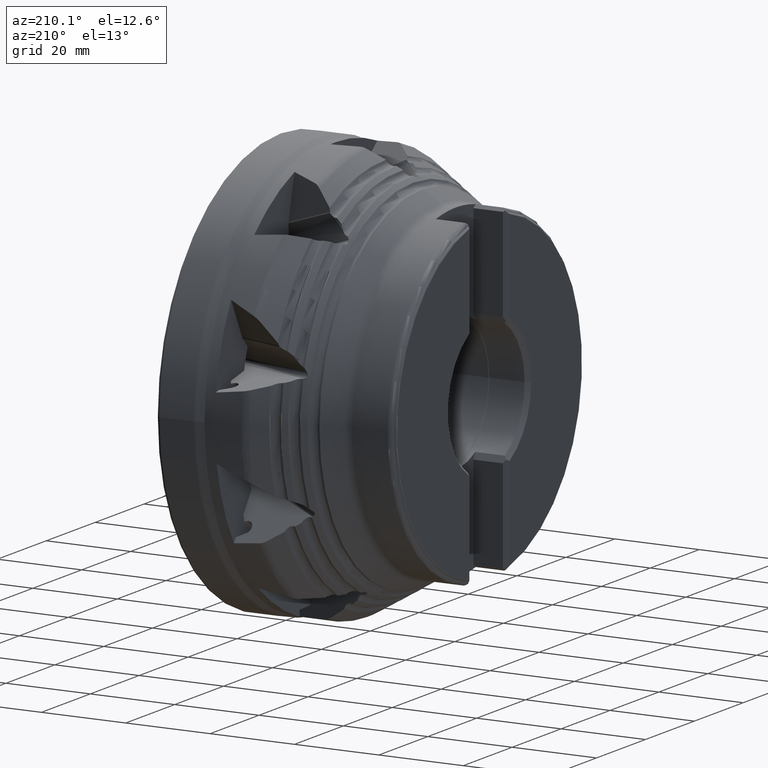
[diagram: clean part render]
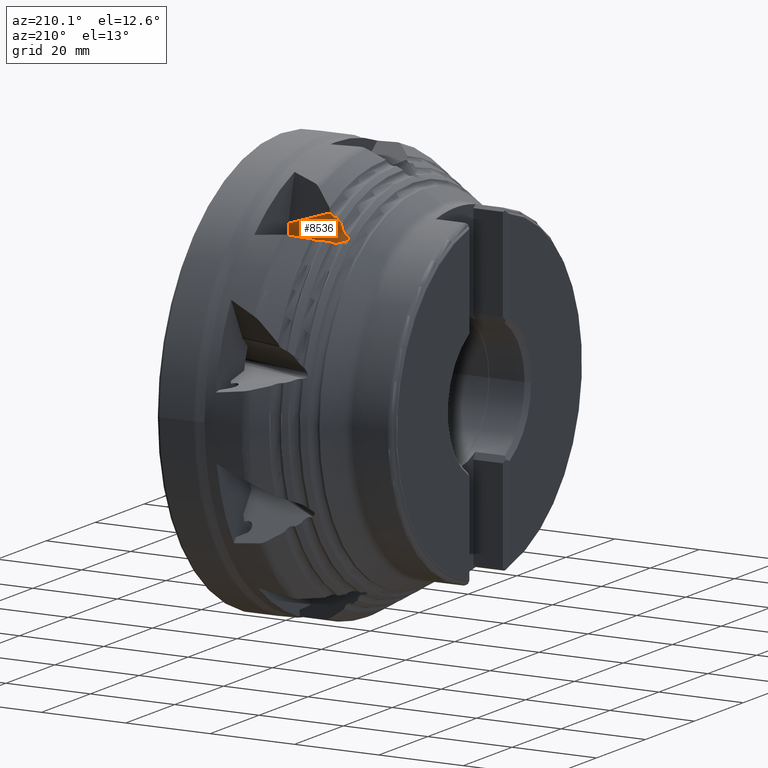
[diagram: same view with one face highlighted and labeled with its STEP entity id]
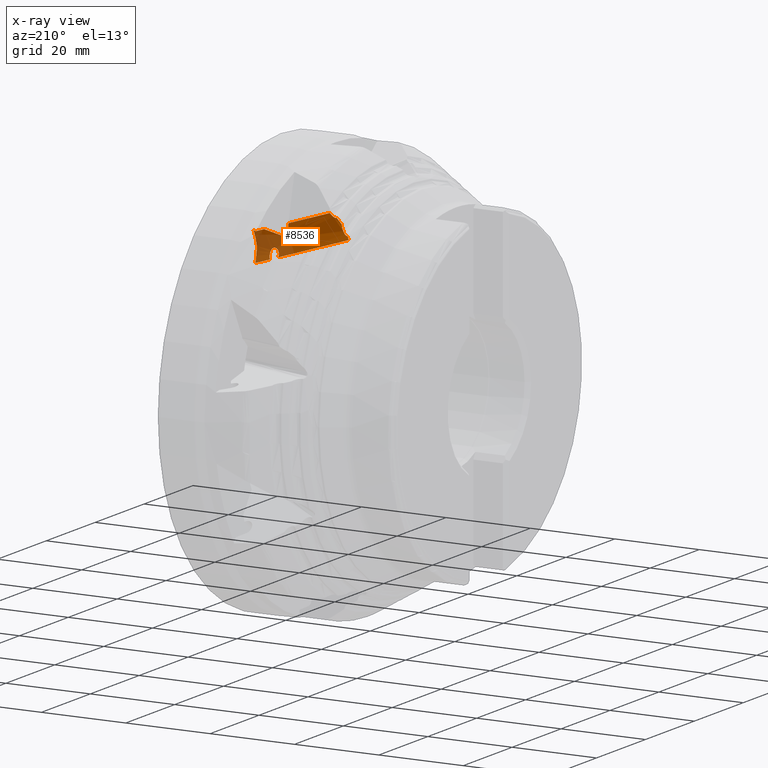
[diagram: x-ray of the same camera — body ghosted, the highlighted face saturated]
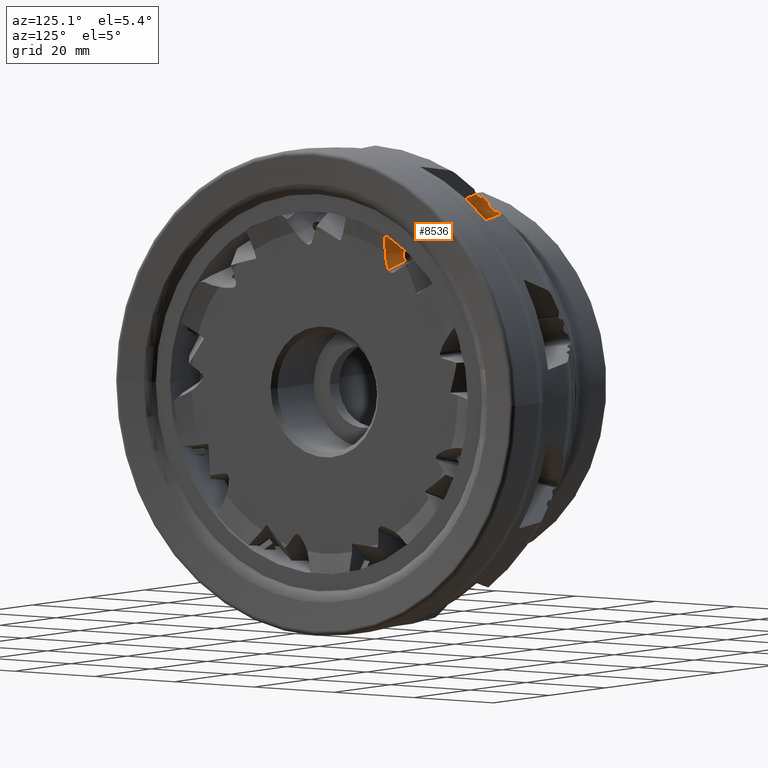
[diagram: same view with one face highlighted and labeled with its STEP entity id]
A machine part, auxiliary view. The second image highlights one B-rep face of the part: STEP entity #8536.
The next image is the same camera in x-ray: the body ghosted, the highlighted face saturated — about 32% of this face is hidden behind the body in this view.
A second angle (auxiliary view) of the same face is appended — the face is thin or edge-on in the first view.
In plain terms, the highlighted face is a freeform B-spline surface patch.
Its self-contained STEP definition (entity closure, byte-faithful):
#940 = ORIENTED_EDGE ( 'NONE', *, *, #9449, .T. ) ;
#950 = ORIENTED_EDGE ( 'NONE', *, *, #9373, .F. ) ;
#955 = ORIENTED_EDGE ( 'NONE', *, *, #9381, .T. ) ;
#970 = ORIENTED_EDGE ( 'NONE', *, *, #9374, .F. ) ;
#971 = ORIENTED_EDGE ( 'NONE', *, *, #9069, .T. ) ;
#974 = ORIENTED_EDGE ( 'NONE', *, *, #9315, .F. ) ;
#1031 = ORIENTED_EDGE ( 'NONE', *, *, #9368, .T. ) ;
#1061 = ORIENTED_EDGE ( 'NONE', *, *, #1575, .F. ) ;
#1069 = ORIENTED_EDGE ( 'NONE', *, *, #9370, .F. ) ;
#1084 = ORIENTED_EDGE ( 'NONE', *, *, #9369, .F. ) ;
#1088 = ORIENTED_EDGE ( 'NONE', *, *, #9425, .T. ) ;
#1091 = ORIENTED_EDGE ( 'NONE', *, *, #9376, .T. ) ;
#1103 = ORIENTED_EDGE ( 'NONE', *, *, #9377, .T. ) ;
#1122 = ORIENTED_EDGE ( 'NONE', *, *, #9365, .F. ) ;
#1149 = ORIENTED_EDGE ( 'NONE', *, *, #9375, .T. ) ;
#1152 = ORIENTED_EDGE ( 'NONE', *, *, #9378, .T. ) ;
#1162 = ORIENTED_EDGE ( 'NONE', *, *, #9372, .T. ) ;
#1163 = ORIENTED_EDGE ( 'NONE', *, *, #9379, .T. ) ;
#1164 = ORIENTED_EDGE ( 'NONE', *, *, #9371, .F. ) ;
#1168 = ORIENTED_EDGE ( 'NONE', *, *, #9367, .F. ) ;
#1575 = EDGE_CURVE ( 'NONE', #14497, #14531, #3260, .T. ) ;
#3260 = B_SPLINE_CURVE_WITH_KNOTS ( 'NONE', 3,
 ( #12953, #12952, #16217, #16218, #16219, #16220, #16221, #16222, #16223, #16224, #16225, #16226, #16227, #16228 ),
 .UNSPECIFIED., .F., .F.,
 ( 4, 2, 2, 2, 2, 2, 4 ),
 ( 0.0000000000000000000, 0.0003602129630830692400, 0.0007204259261661384800, 0.001440851852332272000, 0.002161277778498405600, 0.002521490741581472400, 0.002881703704664540000 ),
 .UNSPECIFIED. ) ;
#7352 = CARTESIAN_POINT ( 'NONE',  ( -24.91936529679575000, 23.00037276728449200, 39.59123364362050500 ) ) ;
#7367 = CARTESIAN_POINT ( 'NONE',  ( -23.69800134660666300, 22.86614650907095800, 40.39354142312364400 ) ) ;
#7392 = CARTESIAN_POINT ( 'NONE',  ( -26.85538848306713100, 23.50310839925481700, 38.37299947299878500 ) ) ;
#7412 = CARTESIAN_POINT ( 'NONE',  ( -28.31936529679585800, 24.29633541513199900, 36.47408926780179400 ) ) ;
#7489 = CARTESIAN_POINT ( 'NONE',  ( -8.744409886978738600, 18.19971992369010700, 28.47764486010553100 ) ) ;
#7495 = CARTESIAN_POINT ( 'NONE',  ( -29.38848879366023300, 24.98506787779646000, 35.74534166294301200 ) ) ;
#7523 = CARTESIAN_POINT ( 'NONE',  ( -7.209164238414222900, 17.14675455855093500, 30.14302659897351300 ) ) ;
#7566 = CARTESIAN_POINT ( 'NONE',  ( -28.92897488212558700, 24.58912334727007800, 36.33945525467353100 ) ) ;
#7982 = CARTESIAN_POINT ( 'NONE',  ( -28.76905744041485100, 24.49832151014001600, 36.42191003214621500 ) ) ;
#8013 = CARTESIAN_POINT ( 'NONE',  ( -26.76015006379809000, 23.47035997634324600, 38.54492662411853800 ) ) ;
#8014 = CARTESIAN_POINT ( 'NONE',  ( -11.35357336522594600, 18.40910020814117900, 32.85474687385148200 ) ) ;
#8016 = CARTESIAN_POINT ( 'NONE',  ( -6.304514093054236500, 17.39776881662570000, 27.61868559430740400 ) ) ;
#8017 = CARTESIAN_POINT ( 'NONE',  ( -11.49269056032622900, 18.85447415754002200, 36.09669201751960100 ) ) ;
#8019 = CARTESIAN_POINT ( 'NONE',  ( -2.000000000000000900, 15.33480723528432500, 29.55898657018997300 ) ) ;
#8039 = CARTESIAN_POINT ( 'NONE',  ( -25.52897488212561300, 23.16412168214510100, 39.55525326870828500 ) ) ;
#8047 = CARTESIAN_POINT ( 'NONE',  ( -25.36905744041486300, 23.12537195171861300, 39.59827024729360500 ) ) ;
#8049 = CARTESIAN_POINT ( 'NONE',  ( -1.991771392522562400, 15.73168806818239100, 32.75191697708338300 ) ) ;
#8057 = CARTESIAN_POINT ( 'NONE',  ( -2.000000000000001800, 15.98295026130258400, 26.10329207865221700 ) ) ;
#8075 = CARTESIAN_POINT ( 'NONE',  ( -1.347099883193307600, 15.63637563097634400, 32.91700296091747200 ) ) ;
#8077 = CARTESIAN_POINT ( 'NONE',  ( -4.453753363379879800, 16.54089851561952800, 33.61865162671951900 ) ) ;
#8536 = ADVANCED_FACE ( 'NONE', ( #15304 ), #21235, .F. ) ;
#9069 = EDGE_CURVE ( 'NONE', #14503, #14574, #17719, .T. ) ;
#9315 = EDGE_CURVE ( 'NONE', #16153, #16209, #17794, .T. ) ;
#9365 = EDGE_CURVE ( 'NONE', #14531, #16150, #17831, .T. ) ;
#9367 = EDGE_CURVE ( 'NONE', #16191, #16153, #17832, .T. ) ;
#9368 = EDGE_CURVE ( 'NONE', #16211, #16183, #20482, .T. ) ;
#9369 = EDGE_CURVE ( 'NONE', #16211, #16148, #17833, .T. ) ;
#9370 = EDGE_CURVE ( 'NONE', #16148, #16151, #17834, .T. ) ;
#9371 = EDGE_CURVE ( 'NONE', #16209, #16183, #17835, .T. ) ;
#9372 = EDGE_CURVE ( 'NONE', #14574, #16116, #17836, .T. ) ;
#9373 = EDGE_CURVE ( 'NONE', #16150, #16191, #20484, .T. ) ;
#9374 = EDGE_CURVE ( 'NONE', #14503, #14497, #20486, .T. ) ;
#9375 = EDGE_CURVE ( 'NONE', #14397, #16147, #17837, .T. ) ;
#9376 = EDGE_CURVE ( 'NONE', #16173, #16181, #17838, .T. ) ;
#9377 = EDGE_CURVE ( 'NONE', #16116, #14417, #17839, .T. ) ;
#9378 = EDGE_CURVE ( 'NONE', #16181, #14355, #17840, .T. ) ;
#9379 = EDGE_CURVE ( 'NONE', #16147, #16173, #17841, .T. ) ;
#9381 = EDGE_CURVE ( 'NONE', #14370, #16151, #20481, .T. ) ;
#9425 = EDGE_CURVE ( 'NONE', #14417, #14397, #17869, .T. ) ;
#9449 = EDGE_CURVE ( 'NONE', #14355, #14370, #22844, .T. ) ;
#12952 = CARTESIAN_POINT ( 'NONE',  ( -8.771231119963504200, 18.16985533822283100, 28.59268323568323900 ) ) ;
#12953 = CARTESIAN_POINT ( 'NONE',  ( -8.744409886978738600, 18.19971992369010700, 28.47764486010553100 ) ) ;
#14355 = VERTEX_POINT ( 'NONE', #7352 ) ;
#14370 = VERTEX_POINT ( 'NONE', #7367 ) ;
#14397 = VERTEX_POINT ( 'NONE', #7392 ) ;
#14417 = VERTEX_POINT ( 'NONE', #7412 ) ;
#14497 = VERTEX_POINT ( 'NONE', #7489 ) ;
#14503 = VERTEX_POINT ( 'NONE', #7495 ) ;
#14531 = VERTEX_POINT ( 'NONE', #7523 ) ;
#14574 = VERTEX_POINT ( 'NONE', #7566 ) ;
#14954 = EDGE_LOOP ( 'NONE', ( #1069, #1084, #1031, #1164, #974, #1168, #950, #1122, #1061, #970, #971, #1162, #1103, #1088, #1149, #1163, #1091, #1152, #940, #955 ) ) ;
#15304 = FACE_OUTER_BOUND ( 'NONE', #14954, .T. ) ;
#16116 = VERTEX_POINT ( 'NONE', #7982 ) ;
#16147 = VERTEX_POINT ( 'NONE', #8013 ) ;
#16148 = VERTEX_POINT ( 'NONE', #8014 ) ;
#16150 = VERTEX_POINT ( 'NONE', #8016 ) ;
#16151 = VERTEX_POINT ( 'NONE', #8017 ) ;
#16153 = VERTEX_POINT ( 'NONE', #8019 ) ;
#16173 = VERTEX_POINT ( 'NONE', #8039 ) ;
#16181 = VERTEX_POINT ( 'NONE', #8047 ) ;
#16183 = VERTEX_POINT ( 'NONE', #8049 ) ;
#16191 = VERTEX_POINT ( 'NONE', #8057 ) ;
#16209 = VERTEX_POINT ( 'NONE', #8075 ) ;
#16211 = VERTEX_POINT ( 'NONE', #8077 ) ;
#16217 = CARTESIAN_POINT ( 'NONE',  ( -8.783908905702634900, 18.13562990807811200, 28.70722398240479100 ) ) ;
#16218 = CARTESIAN_POINT ( 'NONE',  ( -8.782186431910977500, 18.05972223724621300, 28.93563096019937900 ) ) ;
#16219 = CARTESIAN_POINT ( 'NONE',  ( -8.767250957631839400, 18.01766649216338600, 29.05017183869208400 ) ) ;
#16220 = CARTESIAN_POINT ( 'NONE',  ( -8.683638528413387900, 17.88700281673463300, 29.37571775180137100 ) ) ;
#16221 = CARTESIAN_POINT ( 'NONE',  ( -8.574518915681153400, 17.79113944474914500, 29.57655948442646500 ) ) ;
#16222 = CARTESIAN_POINT ( 'NONE',  ( -8.275457767334225800, 17.59828425962138000, 29.90252714753277600 ) ) ;
#16223 = CARTESIAN_POINT ( 'NONE',  ( -8.085493840051551500, 17.50086014602151600, 30.02820092587327100 ) ) ;
#16224 = CARTESIAN_POINT ( 'NONE',  ( -7.768607238878734800, 17.36059105457926700, 30.13579427287145100 ) ) ;
#16225 = CARTESIAN_POINT ( 'NONE',  ( -7.659658518176053500, 17.31558004390572200, 30.15783644314732100 ) ) ;
#16226 = CARTESIAN_POINT ( 'NONE',  ( -7.435322938604846500, 17.22796739679229500, 30.17297189613456300 ) ) ;
#16227 = CARTESIAN_POINT ( 'NONE',  ( -7.320449618176569500, 17.18564412560710500, 30.16547950098208400 ) ) ;
#16228 = CARTESIAN_POINT ( 'NONE',  ( -7.209164238414222900, 17.14675455855093500, 30.14302659897351300 ) ) ;
#17549 = CARTESIAN_POINT ( 'NONE',  ( -28.92722474028795800, 23.95862455020375800, 40.31935663775344400 ) ) ;
#17600 = CARTESIAN_POINT ( 'NONE',  ( -0.9818858329419359900, 15.52950607707665400, 32.82961448301082900 ) ) ;
#17601 = CARTESIAN_POINT ( 'NONE',  ( -28.69903649212608700, 24.63964910496845600, 42.58736866231311800 ) ) ;
#17602 = CARTESIAN_POINT ( 'NONE',  ( -1.210074081103812000, 14.84848152231195300, 30.56160245845116200 ) ) ;
#17603 = CARTESIAN_POINT ( 'NONE',  ( -29.22377408810788100, 24.09736133923613400, 37.96297096218686600 ) ) ;
#17604 = CARTESIAN_POINT ( 'NONE',  ( -1.506623428923727000, 14.98721831134433000, 28.20521678288458400 ) ) ;
#17605 = CARTESIAN_POINT ( 'NONE',  ( -29.55281972642219300, 25.03908058349542300, 35.80319396044875900 ) ) ;
#17606 = CARTESIAN_POINT ( 'NONE',  ( -1.835669067238043100, 15.92893755560362300, 26.04543978114647000 ) ) ;
#17719 = B_SPLINE_CURVE_WITH_KNOTS ( 'NONE', 3,
 ( #19263, #19267, #19268, #19269 ),
 .UNSPECIFIED., .F., .F.,
 ( 4, 4 ),
 ( 0.0000000000000000000, 0.0008490559852133217700 ),
 .UNSPECIFIED. ) ;
#17794 = B_SPLINE_CURVE_WITH_KNOTS ( 'NONE', 3,
 ( #20203, #20207, #20208, #20209, #20210, #20211 ),
 .UNSPECIFIED., .F., .F.,
 ( 4, 2, 4 ),
 ( 0.0000000000000000000, 0.001724105864491008800, 0.003448211728982017600 ),
 .UNSPECIFIED. ) ;
#17831 = B_SPLINE_CURVE_WITH_KNOTS ( 'NONE', 3,
 ( #20418, #20423, #20424, #20425, #20426, #20427, #20428, #20429, #20430, #20431, #20432, #20433, #20434, #20435, #20436, #20437 ),
 .UNSPECIFIED., .F., .F.,
 ( 4, 2, 2, 2, 2, 2, 2, 4 ),
 ( 0.002881703704664540000, 0.003288753939928094700, 0.003695804175191649000, 0.004509904645718767000, 0.004916954880982330800, 0.005324005116245895400, 0.005731055351509459200, 0.006138105586773023900 ),
 .UNSPECIFIED. ) ;
#17832 = B_SPLINE_CURVE_WITH_KNOTS ( 'NONE', 3,
 ( #20422, #20441, #21581, #21582, #21583, #21584 ),
 .UNSPECIFIED., .F., .F.,
 ( 4, 2, 4 ),
 ( 0.0000000000000000000, 0.001762706853250009700, 0.003525413706500019300 ),
 .UNSPECIFIED. ) ;
#17833 = B_SPLINE_CURVE_WITH_KNOTS ( 'NONE', 3,
 ( #20417, #21588, #21589, #21590, #21591, #21592 ),
 .UNSPECIFIED., .F., .F.,
 ( 4, 2, 4 ),
 ( 0.001054517111951160200, 0.004651506148399120800, 0.008248495184847081900 ),
 .UNSPECIFIED. ) ;
#17834 = B_SPLINE_CURVE_WITH_KNOTS ( 'NONE', 3,
 ( #20440, #21594, #21595, #21596, #21597, #21598 ),
 .UNSPECIFIED., .F., .F.,
 ( 4, 2, 4 ),
 ( 2.360672486937077600E-015, 0.001641819357845427900, 0.003283638715688494800 ),
 .UNSPECIFIED. ) ;
#17835 = B_SPLINE_CURVE_WITH_KNOTS ( 'NONE', 3,
 ( #21587, #21600, #21601, #21602 ),
 .UNSPECIFIED., .F., .F.,
 ( 4, 4 ),
 ( 1.039205972251718900E-005, 0.0006824652663075552600 ),
 .UNSPECIFIED. ) ;
#17836 = B_SPLINE_CURVE_WITH_KNOTS ( 'NONE', 3,
 ( #21593, #21604, #21605, #21606, #21607, #21608 ),
 .UNSPECIFIED., .F., .F.,
 ( 4, 2, 4 ),
 ( 0.0000000000000000000, 0.0001035126225339844100, 0.0002070252450679688200 ),
 .UNSPECIFIED. ) ;
#17837 = B_SPLINE_CURVE_WITH_KNOTS ( 'NONE', 3,
 ( #21599, #21614, #21615, #21616 ),
 .UNSPECIFIED., .F., .F.,
 ( 4, 4 ),
 ( 0.0000000000000000000, 0.0002021963165807236000 ),
 .UNSPECIFIED. ) ;
#17838 = B_SPLINE_CURVE_WITH_KNOTS ( 'NONE', 3,
 ( #21603, #21618, #21619, #21620 ),
 .UNSPECIFIED., .F., .F.,
 ( 4, 4 ),
 ( 0.0000000000000000000, 0.0001741717395590064400 ),
 .UNSPECIFIED. ) ;
#17839 = B_SPLINE_CURVE_WITH_KNOTS ( 'NONE', 3,
 ( #21613, #21622, #21623, #21624 ),
 .UNSPECIFIED., .F., .F.,
 ( 4, 4 ),
 ( 0.0000000000000000000, 0.0004957884310556573600 ),
 .UNSPECIFIED. ) ;
#17840 = B_SPLINE_CURVE_WITH_KNOTS ( 'NONE', 3,
 ( #21617, #21625, #21626, #21627 ),
 .UNSPECIFIED., .F., .F.,
 ( 4, 4 ),
 ( 0.0000000000000000000, 0.0004667474538684698200 ),
 .UNSPECIFIED. ) ;
#17841 = B_SPLINE_CURVE_WITH_KNOTS ( 'NONE', 3,
 ( #21621, #21630, #21631, #21632 ),
 .UNSPECIFIED., .F., .F.,
 ( 4, 4 ),
 ( 0.0000000000000000000, 0.001621830493475692900 ),
 .UNSPECIFIED. ) ;
#17869 = B_SPLINE_CURVE_WITH_KNOTS ( 'NONE', 3,
 ( #21880, #21884, #21885, #21886, #21887, #21888, #21889, #21890, #21891, #21892 ),
 .UNSPECIFIED., .F., .F.,
 ( 4, 2, 2, 2, 4 ),
 ( 0.0004957884310556573600, 0.001153304637507085300, 0.001810820843958513400, 0.002468337050409941500, 0.003125853256861369500 ),
 .UNSPECIFIED. ) ;
#19263 = CARTESIAN_POINT ( 'NONE',  ( -29.38848879366023300, 24.98506787779646000, 35.74534166294301200 ) ) ;
#19267 = CARTESIAN_POINT ( 'NONE',  ( -29.24355449114979400, 24.84567404982416900, 35.94481048218590000 ) ) ;
#19268 = CARTESIAN_POINT ( 'NONE',  ( -29.09018288465200500, 24.71380842062584200, 36.14277065149850200 ) ) ;
#19269 = CARTESIAN_POINT ( 'NONE',  ( -28.92897488212558700, 24.58912334727007800, 36.33945525467353100 ) ) ;
#20203 = CARTESIAN_POINT ( 'NONE',  ( -2.000000000000000900, 15.33480723528432500, 29.55898657018997300 ) ) ;
#20207 = CARTESIAN_POINT ( 'NONE',  ( -1.900030694069617900, 15.28859239325706900, 30.12495325980153300 ) ) ;
#20208 = CARTESIAN_POINT ( 'NONE',  ( -1.794770505639855100, 15.28983138225880500, 30.69049523809220400 ) ) ;
#20209 = CARTESIAN_POINT ( 'NONE',  ( -1.575346981656730500, 15.39006562637790200, 31.81760979709535800 ) ) ;
#20210 = CARTESIAN_POINT ( 'NONE',  ( -1.462592451654279200, 15.48831709758310500, 32.37200494681725600 ) ) ;
#20211 = CARTESIAN_POINT ( 'NONE',  ( -1.347099883193307600, 15.63637563097634400, 32.91700296091747200 ) ) ;
#20417 = CARTESIAN_POINT ( 'NONE',  ( -4.453753363379879800, 16.54089851561952800, 33.61865162671951900 ) ) ;
#20418 = CARTESIAN_POINT ( 'NONE',  ( -7.209164238414222900, 17.14675455855093500, 30.14302659897351300 ) ) ;
#20422 = CARTESIAN_POINT ( 'NONE',  ( -2.000000000000001800, 15.98295026130258400, 26.10329207865221700 ) ) ;
#20423 = CARTESIAN_POINT ( 'NONE',  ( -7.083408797449673800, 17.10280831274117100, 30.11765422212536000 ) ) ;
#20424 = CARTESIAN_POINT ( 'NONE',  ( -6.958219520979344700, 17.06184644394297600, 30.07218102180620500 ) ) ;
#20425 = CARTESIAN_POINT ( 'NONE',  ( -6.726967417347281300, 16.99187284620499800, 29.94724090149286500 ) ) ;
#20426 = CARTESIAN_POINT ( 'NONE',  ( -6.618385335105624100, 16.96206829335057600, 29.86673994713433100 ) ) ;
#20427 = CARTESIAN_POINT ( 'NONE',  ( -6.328963884376481300, 16.89400634944934200, 29.58497682534251500 ) ) ;
#20428 = CARTESIAN_POINT ( 'NONE',  ( -6.184453803492415200, 16.87707083115666900, 29.34443179388811600 ) ) ;
#20429 = CARTESIAN_POINT ( 'NONE',  ( -6.056239958224655800, 16.90474479159429300, 28.95520935380356800 ) ) ;
#20430 = CARTESIAN_POINT ( 'NONE',  ( -6.028483335940241400, 16.92269893775196000, 28.82181215340275700 ) ) ;
#20431 = CARTESIAN_POINT ( 'NONE',  ( -6.003134176643047900, 16.97585739221514700, 28.55636746355008900 ) ) ;
#20432 = CARTESIAN_POINT ( 'NONE',  ( -6.005658929987038000, 17.01172100672712500, 28.42205501614445900 ) ) ;
#20433 = CARTESIAN_POINT ( 'NONE',  ( -6.040755865349459500, 17.09828722451503000, 28.16728631676144400 ) ) ;
#20434 = CARTESIAN_POINT ( 'NONE',  ( -6.073657573632965900, 17.15007680859600100, 28.04338399200121400 ) ) ;
#20435 = CARTESIAN_POINT ( 'NONE',  ( -6.168332066442404800, 17.26596725570776400, 27.81508053681113800 ) ) ;
#20436 = CARTESIAN_POINT ( 'NONE',  ( -6.229192360429340900, 17.32931735524019200, 27.71145360529632700 ) ) ;
#20437 = CARTESIAN_POINT ( 'NONE',  ( -6.304514093054236500, 17.39776881662570000, 27.61868559430740400 ) ) ;
#20440 = CARTESIAN_POINT ( 'NONE',  ( -11.35357336522594600, 18.40910020814117900, 32.85474687385148200 ) ) ;
#20441 = CARTESIAN_POINT ( 'NONE',  ( -2.000000000000001300, 15.77987123339760000, 26.65769219703682000 ) ) ;
#20475 = VECTOR ( 'NONE', #21586, 1000.000000000000000 ) ;
#20481 = LINE ( 'NONE', #21638, #20485 ) ;
#20482 = LINE ( 'NONE', #21585, #20475 ) ;
#20483 = VECTOR ( 'NONE', #21610, 1000.000000000000000 ) ;
#20484 = LINE ( 'NONE', #21609, #20483 ) ;
#20485 = VECTOR ( 'NONE', #21639, 1000.000000000000000 ) ;
#20486 = LINE ( 'NONE', #21611, #20487 ) ;
#20487 = VECTOR ( 'NONE', #21612, 1000.000000000000000 ) ;
#21235 =( BOUNDED_SURFACE ( )  B_SPLINE_SURFACE ( 3, 1, ( 
 ( #17601, #17600 ),
 ( #17549, #17602 ),
 ( #17603, #17604 ),
 ( #17605, #17606 ) ),
 .UNSPECIFIED., .F., .F., .T. ) 
 B_SPLINE_SURFACE_WITH_KNOTS ( ( 4, 4 ),
 ( 2, 2 ),
 ( 0.0000000000000000000, 1.000000000000000000 ),
 ( 0.0000000000000000000, 1.000000000000000000 ),
 .UNSPECIFIED. ) 
 GEOMETRIC_REPRESENTATION_ITEM ( )  RATIONAL_B_SPLINE_SURFACE ( (
 ( 1.000000000000000000, 1.000000000000000000),
 ( 0.9596865193743686600, 0.9596865193743686600),
 ( 0.9596865193743686600, 0.9596865193743686600),
 ( 1.000000000000000000, 1.000000000000000000) ) ) 
 REPRESENTATION_ITEM ( '' )  SURFACE ( )  );
#21581 = CARTESIAN_POINT ( 'NONE',  ( -2.000000000000003600, 15.62502274613907400, 27.22454856913041600 ) ) ;
#21582 = CARTESIAN_POINT ( 'NONE',  ( -2.000000000000003100, 15.40851912341153200, 28.38232988104097400 ) ) ;
#21583 = CARTESIAN_POINT ( 'NONE',  ( -1.999999999999993600, 15.34789131169460700, 28.97009526500432800 ) ) ;
#21584 = CARTESIAN_POINT ( 'NONE',  ( -2.000000000000000900, 15.33480723528432500, 29.55898657018997300 ) ) ;
#21585 = CARTESIAN_POINT ( 'NONE',  ( -41.77812741278354000, 28.80876797297049300, 46.75860498443347500 ) ) ;
#21586 = DIRECTION ( 'NONE',  ( 0.9009485569986041000, -0.2961260454205579300, -0.3171767060578608000 ) ) ;
#21587 = CARTESIAN_POINT ( 'NONE',  ( -1.347099883193307600, 15.63637563097634400, 32.91700296091747200 ) ) ;
#21588 = CARTESIAN_POINT ( 'NONE',  ( -5.624170847809126400, 16.78776233162278300, 33.53371415181326400 ) ) ;
#21589 = CARTESIAN_POINT ( 'NONE',  ( -6.787002369680643600, 17.06496162626625300, 33.43071562383555300 ) ) ;
#21590 = CARTESIAN_POINT ( 'NONE',  ( -9.090570614326088300, 17.68499905524112100, 33.17999895371790600 ) ) ;
#21591 = CARTESIAN_POINT ( 'NONE',  ( -10.22995093735878500, 18.02719283637051400, 33.03267303390904200 ) ) ;
#21592 = CARTESIAN_POINT ( 'NONE',  ( -11.35357336522594600, 18.40910020814117900, 32.85474687385148200 ) ) ;
#21593 = CARTESIAN_POINT ( 'NONE',  ( -28.92897488212558700, 24.58912334727007800, 36.33945525467353100 ) ) ;
#21594 = CARTESIAN_POINT ( 'NONE',  ( -11.37520367863400100, 18.40432963843361900, 33.40341868206175500 ) ) ;
#21595 = CARTESIAN_POINT ( 'NONE',  ( -11.39773856279714800, 18.43977905581376900, 33.94909709993461200 ) ) ;
#21596 = CARTESIAN_POINT ( 'NONE',  ( -11.44438191436234000, 18.58926726248856200, 35.03461292344412900 ) ) ;
#21597 = CARTESIAN_POINT ( 'NONE',  ( -11.46834317189362600, 18.70302820507969700, 35.57090740622111000 ) ) ;
#21598 = CARTESIAN_POINT ( 'NONE',  ( -11.49269056032622900, 18.85447415754002200, 36.09669201751960100 ) ) ;
#21599 = CARTESIAN_POINT ( 'NONE',  ( -26.85538848306713100, 23.50310839925481700, 38.37299947299878500 ) ) ;
#21600 = CARTESIAN_POINT ( 'NONE',  ( -1.562998749525101200, 15.66657971890169400, 32.86468794603450800 ) ) ;
#21601 = CARTESIAN_POINT ( 'NONE',  ( -1.777914886915939600, 15.69831070254491800, 32.80972827019042600 ) ) ;
#21602 = CARTESIAN_POINT ( 'NONE',  ( -1.991771392522562400, 15.73168806818239100, 32.75191697708338300 ) ) ;
#21603 = CARTESIAN_POINT ( 'NONE',  ( -25.52897488212561300, 23.16412168214510100, 39.55525326870828500 ) ) ;
#21604 = CARTESIAN_POINT ( 'NONE',  ( -28.90913361134813900, 24.57377727099850900, 36.36366293920650600 ) ) ;
#21605 = CARTESIAN_POINT ( 'NONE',  ( -28.88650354711766600, 24.55827163940001200, 36.38477351851980000 ) ) ;
#21606 = CARTESIAN_POINT ( 'NONE',  ( -28.83252486296037300, 24.52675278680930800, 36.41606949059193000 ) ) ;
#21607 = CARTESIAN_POINT ( 'NONE',  ( -28.80161035015565600, 24.51109307157470600, 36.42564806289391300 ) ) ;
#21608 = CARTESIAN_POINT ( 'NONE',  ( -28.76905744041485100, 24.49832151014001600, 36.42191003214621500 ) ) ;
#21609 = CARTESIAN_POINT ( 'NONE',  ( -42.58914424766599900, 29.32389262665512700, 40.39259969136424600 ) ) ;
#21610 = DIRECTION ( 'NONE',  ( 0.9009485569986041000, -0.2961260454205579300, -0.3171767060578608000 ) ) ;
#21611 = CARTESIAN_POINT ( 'NONE',  ( -42.58914424766599900, 29.32389262665512700, 40.39259969136424600 ) ) ;
#21612 = DIRECTION ( 'NONE',  ( 0.9009485569986041000, -0.2961260454205579300, -0.3171767060578608000 ) ) ;
#21613 = CARTESIAN_POINT ( 'NONE',  ( -28.76905744041485100, 24.49832151014001600, 36.42191003214621500 ) ) ;
#21614 = CARTESIAN_POINT ( 'NONE',  ( -26.84322455596305400, 23.49794007020592400, 38.44007281470604200 ) ) ;
#21615 = CARTESIAN_POINT ( 'NONE',  ( -26.81019326848764100, 23.48666560169617400, 38.50118943592193000 ) ) ;
#21616 = CARTESIAN_POINT ( 'NONE',  ( -26.76015006379809000, 23.47035997634324600, 38.54492662411853800 ) ) ;
#21617 = CARTESIAN_POINT ( 'NONE',  ( -25.36905744041486300, 23.12537195171861300, 39.59827024729360500 ) ) ;
#21618 = CARTESIAN_POINT ( 'NONE',  ( -25.48287519690722600, 23.15594072405690800, 39.59087077489798600 ) ) ;
#21619 = CARTESIAN_POINT ( 'NONE',  ( -25.42459276706532000, 23.14229957015571800, 39.60859454256414800 ) ) ;
#21620 = CARTESIAN_POINT ( 'NONE',  ( -25.36905744041486300, 23.12537195171861300, 39.59827024729360500 ) ) ;
#21621 = CARTESIAN_POINT ( 'NONE',  ( -26.76015006379809000, 23.47035997634324600, 38.54492662411853800 ) ) ;
#21622 = CARTESIAN_POINT ( 'NONE',  ( -28.61275810760722400, 24.43700021668120200, 36.40396227520145800 ) ) ;
#21623 = CARTESIAN_POINT ( 'NONE',  ( -28.46312109859041700, 24.36779940265953600, 36.42648525503747000 ) ) ;
#21624 = CARTESIAN_POINT ( 'NONE',  ( -28.31936529679585800, 24.29633541513199900, 36.47408926780179400 ) ) ;
#21625 = CARTESIAN_POINT ( 'NONE',  ( -25.22020755405069900, 23.08000129788889900, 39.57059830817861700 ) ) ;
#21626 = CARTESIAN_POINT ( 'NONE',  ( -25.07036053267185600, 23.03814801552616800, 39.56928826048959300 ) ) ;
#21627 = CARTESIAN_POINT ( 'NONE',  ( -24.91936529679575000, 23.00037276728449200, 39.59123364362050500 ) ) ;
#21630 = CARTESIAN_POINT ( 'NONE',  ( -26.36412950142942400, 23.34132421690104300, 38.89104406350909900 ) ) ;
#21631 = CARTESIAN_POINT ( 'NONE',  ( -25.95333482122168400, 23.23942959063962400, 39.22738459268990900 ) ) ;
#21632 = CARTESIAN_POINT ( 'NONE',  ( -25.52897488212561300, 23.16412168214510100, 39.55525326870828500 ) ) ;
#21638 = CARTESIAN_POINT ( 'NONE',  ( -41.77812741278354000, 28.80876797297049300, 46.75860498443347500 ) ) ;
#21639 = DIRECTION ( 'NONE',  ( 0.9009485569986041000, -0.2961260454205579300, -0.3171767060578608000 ) ) ;
#21880 = CARTESIAN_POINT ( 'NONE',  ( -28.31936529679585800, 24.29633541513199900, 36.47408926780179400 ) ) ;
#21884 = CARTESIAN_POINT ( 'NONE',  ( -28.12871589166533700, 24.20155964580443000, 36.53722186211832200 ) ) ;
#21885 = CARTESIAN_POINT ( 'NONE',  ( -27.95732435731265400, 24.10752494903310600, 36.64094491859062000 ) ) ;
#21886 = CARTESIAN_POINT ( 'NONE',  ( -27.64188961573085700, 23.93128650064881000, 36.89525355801976800 ) ) ;
#21887 = CARTESIAN_POINT ( 'NONE',  ( -27.50212087691759100, 23.85115926112935400, 37.04311750369002700 ) ) ;
#21888 = CARTESIAN_POINT ( 'NONE',  ( -27.25103905829562500, 23.70922741528447400, 37.37461964587121300 ) ) ;
#21889 = CARTESIAN_POINT ( 'NONE',  ( -27.14096194475373700, 23.64807314652823700, 37.55822195135698400 ) ) ;
#21890 = CARTESIAN_POINT ( 'NONE',  ( -26.96406604444739900, 23.55401277361203700, 37.94608047646567400 ) ) ;
#21891 = CARTESIAN_POINT ( 'NONE',  ( -26.89490856015770600, 23.51990007851217600, 38.15508106455264700 ) ) ;
#21892 = CARTESIAN_POINT ( 'NONE',  ( -26.85538848306713100, 23.50310839925481700, 38.37299947299878500 ) ) ;
#22021 = CARTESIAN_POINT ( 'NONE',  ( -24.91936529679575000, 23.00037276728449200, 39.59123364362050500 ) ) ;
#22024 = CARTESIAN_POINT ( 'NONE',  ( -24.43092658014561300, 22.87817756248052300, 39.66222247125254100 ) ) ;
#22025 = CARTESIAN_POINT ( 'NONE',  ( -23.97532317456197500, 22.81438482962703800, 39.97587288027413900 ) ) ;
#22026 = CARTESIAN_POINT ( 'NONE',  ( -23.69800134660666300, 22.86614650907095800, 40.39354142312364400 ) ) ;
#22844 = B_SPLINE_CURVE_WITH_KNOTS ( 'NONE', 3,
 ( #22021, #22024, #22025, #22026 ),
 .UNSPECIFIED., .F., .F.,
 ( 4, 4 ),
 ( 0.0004667474538684698200, 0.001976580039277298300 ),
 .UNSPECIFIED. ) ;